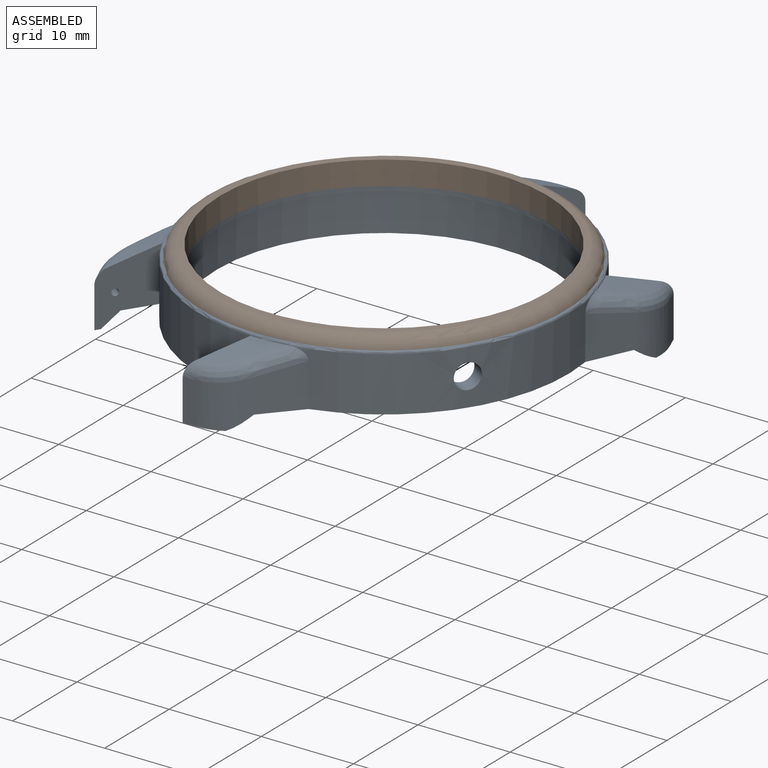
[diagram: assembled view]
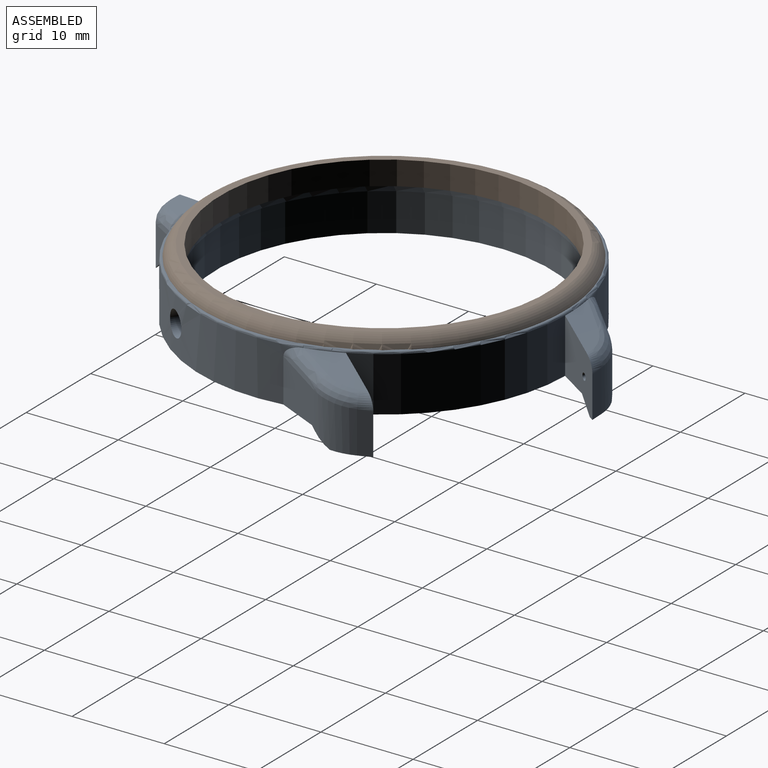
[diagram: assembled view, second angle]
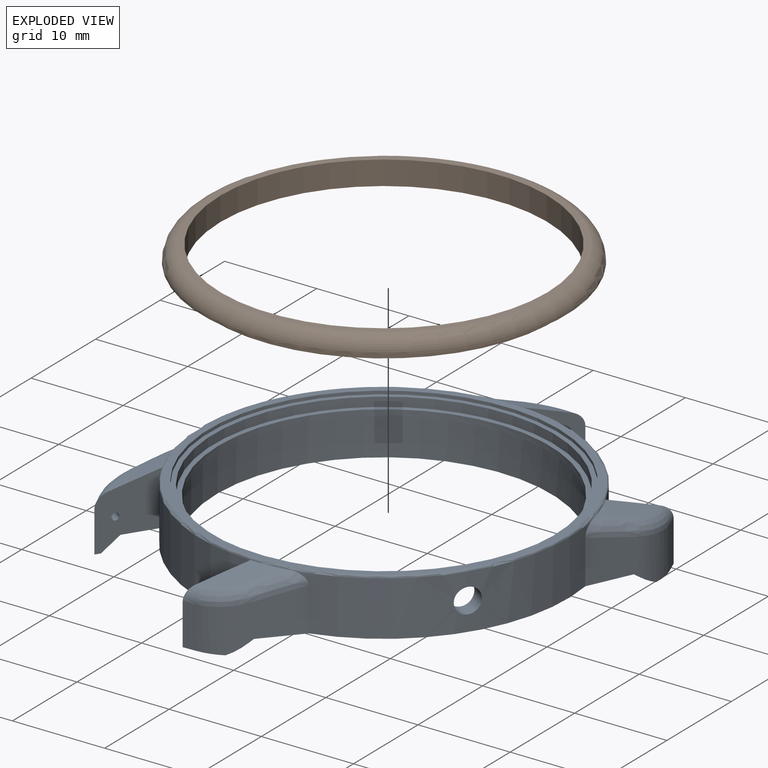
[diagram: exploded view]
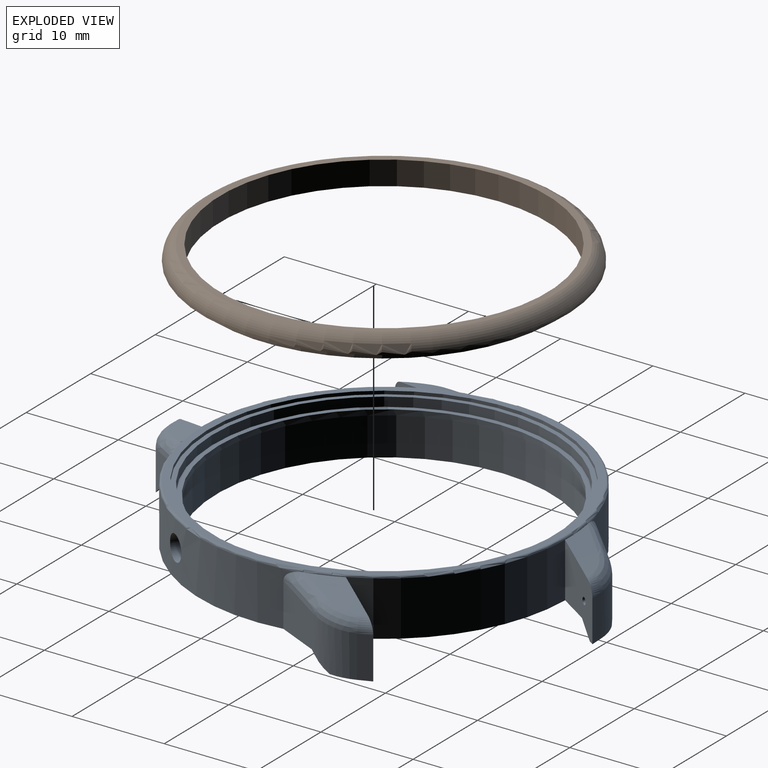
[diagram: exploded view, second angle]
ASSEMBLY  parts=2 mates=2
PART A: 71 faces, bbox 43.6x54.9x8.2 mm
  f0: cylinder r=20mm len=21mm, axis (0,0,-1), area 130.7mm2, adj f9,f10,f28,f46
  f1: cylinder r=20mm len=29.3mm, axis (0,0,-1), area 173.7mm2, adj f6,f7,f28,f46,f59,f62
  f2: cylinder r=20mm len=21mm, axis (0,0,-1), area 130.7mm2, adj f3,f4,f28,f46
  f3: plane 7.7x6.79mm, normal (-1,0,0), area 34.1mm2, adj f2,f14,f27,f28,f29,f47,f57,f70
  f4: plane 7.7x6.79mm, normal (1,0,0), area 34.1mm2, adj f2,f5,f24,f28,f30,f50,f53,f61
  f5: plane 4.54x1.22mm, normal (-0.58,0.82,0), area 6.7mm2, adj f4,f15,f24,f61
  f6: plane 5.39x5.05mm, normal (-0.99,0.15,0), area 22.8mm2, adj f1,f15,f28,f30,f59
  f7: plane 5.39x5.05mm, normal (-0.99,-0.15,0), area 22.8mm2, adj f1,f16,f28,f32,f62
  f8: plane 4.54x1.22mm, normal (-0.58,-0.82,0), area 6.7mm2, adj f9,f16,f25,f64
  f9: plane 7.7x6.79mm, normal (1,0,0), area 34.1mm2, adj f0,f8,f25,f28,f32,f49,f51,f64
  f10: plane 7.7x6.79mm, normal (-1,0,0), area 34.1mm2, adj f0,f11,f26,f28,f31,f48,f55,f67
  f11: plane 4.54x1.22mm, normal (0.58,-0.82,0), area 6.7mm2, adj f10,f17,f26,f67
  f12: plane 5.39x5.05mm, normal (0.99,-0.15,0), area 22.8mm2, adj f17,f22,f28,f31,f65
  f13: plane 5.39x5.05mm, normal (0.99,0.15,0), area 22.8mm2, adj f18,f22,f28,f29,f68
  f14: plane 4.54x1.22mm, normal (0.58,0.82,0), area 6.7mm2, adj f3,f18,f27,f70
  f15: cylinder r=6mm len=5.07mm, axis (0,0,-1), area 22mm2, adj f5,f6,f24,f30,f60
  f16: cylinder r=6mm len=5.07mm, axis (0,0,-1), area 22mm2, adj f7,f8,f25,f32,f63
  f17: cylinder r=6mm len=5.07mm, axis (0,0,-1), area 22mm2, adj f11,f12,f26,f31,f66
  f18: cylinder r=6mm len=5.07mm, axis (0,0,-1), area 22mm2, adj f13,f14,f27,f29,f69
  f19: plane 39.5x39.5mm, normal (0,0,1), area 91.3mm2, adj f41,f46
  f20: cylinder r=17.98mm len=35.95mm, axis (0,0,1), area 66.2mm2, adj f23,f44,f45
  f21: cylinder r=18.2mm len=36.4mm, axis (0,0,1), area 478.6mm2, adj f23,f28,f45
  f22: cylinder r=20mm len=29.3mm, axis (0,0,-1), area 167.9mm2, adj f12,f13,f28,f45,f46,f65,f68
  f23: plane 36.4x36.39mm, normal (0,0,-1), area 25.2mm2, adj f20,f21,f45
  f24: plane 3.02x2.9mm, normal (0,0,-1), area 1.7mm2, adj f4,f5,f15,f30
  f25: plane 3.02x2.9mm, normal (0,0,-1), area 1.7mm2, adj f8,f9,f16,f32
  f26: plane 3.02x2.9mm, normal (0,0,-1), area 1.7mm2, adj f10,f11,f17,f31
  f27: plane 3.02x2.9mm, normal (0,0,-1), area 1.7mm2, adj f3,f14,f18,f29
  f28: plane 42.04x40mm, normal (0,0,-1), area 273.3mm2, adj f0,f1,f2,f3,f4,f6,f7,f9
  f29: plane 4.85x3.9mm, normal (-0.43,-0.56,-0.71), area 9.3mm2, adj f3,f13,f18,f27,f28
  f30: plane 4.85x3.9mm, normal (0.43,-0.56,-0.71), area 9.3mm2, adj f4,f6,f15,f24,f28
  f31: plane 4.85x3.9mm, normal (-0.43,0.56,-0.71), area 9.3mm2, adj f10,f12,f17,f26,f28
  f32: plane 4.85x3.9mm, normal (0.43,0.56,-0.71), area 9.3mm2, adj f7,f9,f16,f25,f28
  f33: cone r=0mm half-angle=59deg, axis (0,0,-1), area 2.3mm2, adj f34
  f34: cylinder r=0.8mm len=2.6mm, axis (0,0,-1), area 13.1mm2, adj f28,f33
  f35: cone r=0mm half-angle=59deg, axis (0,0,-1), area 2.3mm2, adj f36
  f36: cylinder r=0.8mm len=2.6mm, axis (0,0,-1), area 13.1mm2, adj f28,f35
  f37: cone r=0mm half-angle=59deg, axis (0,0,-1), area 2.3mm2, adj f38
  f38: cylinder r=0.8mm len=2.6mm, axis (0,0,-1), area 13.1mm2, adj f28,f37
  f39: cone r=0mm half-angle=59deg, axis (0,0,-1), area 2.3mm2, adj f40
  f40: cylinder r=0.8mm len=2.6mm, axis (0,0,-1), area 13.1mm2, adj f28,f39
  f41: cylinder r=19mm len=38mm, axis (0,0,1), area 41.8mm2, adj f19,f42
  f42: plane 38x38mm, normal (0,0,1), area 58.9mm2, adj f41,f43
  f43: cylinder r=18.5mm len=37mm, axis (0,0,1), area 116.2mm2, adj f42,f44
  f44: plane 37x37mm, normal (0,0,1), area 60.2mm2, adj f20,f43
  f45: cylinder r=1.35mm len=2.7mm, axis (-1,0,0), area 15.7mm2, adj f20,f21,f22,f23
  f46: torus R=19.75mm, axis (0,0,1), area 49.1mm2, adj f0,f1,f2,f19,f22,f47,f48,f49
  f47: cone r=27mm half-angle=72.2deg, axis (0,0,-1), area 13mm2, adj f3,f46,f68,f69,f70
  f48: cone r=27mm half-angle=72.2deg, axis (0,0,-1), area 13mm2, adj f10,f46,f65,f66,f67
  f49: cone r=27mm half-angle=72.2deg, axis (0,0,-1), area 13mm2, adj f9,f46,f62,f63,f64
  f50: cone r=27mm half-angle=72.2deg, axis (0,0,-1), area 13mm2, adj f4,f46,f59,f60,f61
  f51: cylinder r=0.38mm len=1.25mm, axis (0.98,0,-0.17), area 2.7mm2, adj f9,f52
  f52: plane 0.75x0.74mm, normal (0.98,0,-0.17), area 0.4mm2, adj f51
  f53: cylinder r=0.38mm len=1.25mm, axis (0.98,0,-0.17), area 2.7mm2, adj f4,f54
  f54: plane 0.75x0.74mm, normal (0.98,0,-0.17), area 0.4mm2, adj f53
  f55: cylinder r=0.38mm len=1.25mm, axis (-0.98,0,-0.17), area 2.5mm2, adj f10,f56
  f56: plane 0.75x0.74mm, normal (-0.98,0,-0.17), area 0.4mm2, adj f55
  f57: cylinder r=0.38mm len=1.25mm, axis (-0.98,0,-0.17), area 2.5mm2, adj f3,f58
  f58: plane 0.75x0.74mm, normal (-0.98,0,-0.17), area 0.4mm2, adj f57
  f59: bspline ~10.58x3.73mm, area 10mm2, adj f1,f6,f50,f60
  f60: bspline ~6.05x4.07mm, area 8.6mm2, adj f15,f50,f59,f61
  f61: bspline ~8.08x6.08mm, area 2.1mm2, adj f4,f5,f50,f60
  f62: bspline ~10.58x3.73mm, area 10mm2, adj f1,f7,f49,f63
  f63: bspline ~6.05x4.07mm, area 8.6mm2, adj f16,f49,f62,f64
  f64: bspline ~8.08x6.08mm, area 2.1mm2, adj f8,f9,f49,f63
  f65: bspline ~10.58x3.73mm, area 10mm2, adj f12,f22,f48,f66
  f66: bspline ~6.05x4.07mm, area 8.6mm2, adj f17,f48,f65,f67
  f67: bspline ~8.08x6.08mm, area 2.1mm2, adj f10,f11,f48,f66
  f68: bspline ~10.58x3.73mm, area 10mm2, adj f13,f22,f47,f69
  f69: bspline ~6.05x4.07mm, area 8.6mm2, adj f18,f47,f68,f70
  f70: bspline ~8.08x6.08mm, area 2.1mm2, adj f3,f14,f47,f69
PART B: 6 faces, bbox 42.8x42.8x2.7 mm
  f0: torus R=17.95mm, axis (0,0,-1), area 271.7mm2, adj f1,f5
  f1: plane 39.5x39.5mm, normal (0,0,-1), area 147.7mm2, adj f0,f2
  f2: cylinder r=18.52mm len=37.04mm, axis (0,0,-1), area 104.7mm2, adj f1,f3
  f3: plane 37.04x37.04mm, normal (0,0,-1), area 87.9mm2, adj f2,f4
  f4: cylinder r=17.75mm len=35.5mm, axis (0,0,-1), area 290mm2, adj f3,f5
  f5: plane 37.04x37.04mm, normal (0,0,1), area 87.9mm2, adj f0,f4
PLACE A rot(axis=(0,0,-1),33.1deg) t=(-21.2,-4.99,-5.58)mm
PLACE B t=(-21.2,-4.99,0.48)mm fixed
MATE cylindrical A.f20 <-> B.f0  axis (0,0,1) through (-21.2,-4.99,0.73)mm
MATE planar B.f0 <-> A.f43  axis (0,0,-1) through (-21.2,-4.99,0.73)mm
